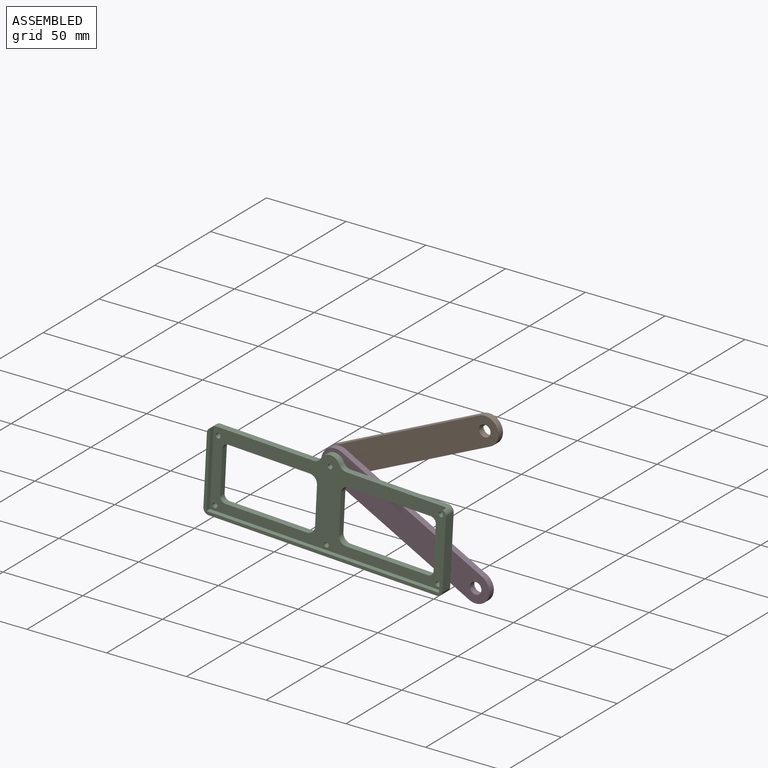
[diagram: assembled view]
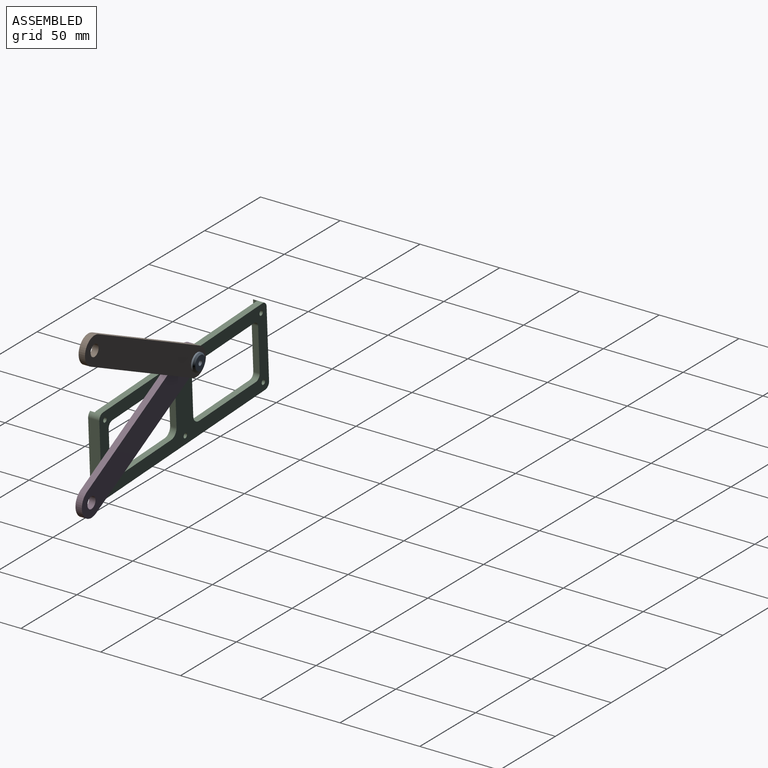
[diagram: assembled view, second angle]
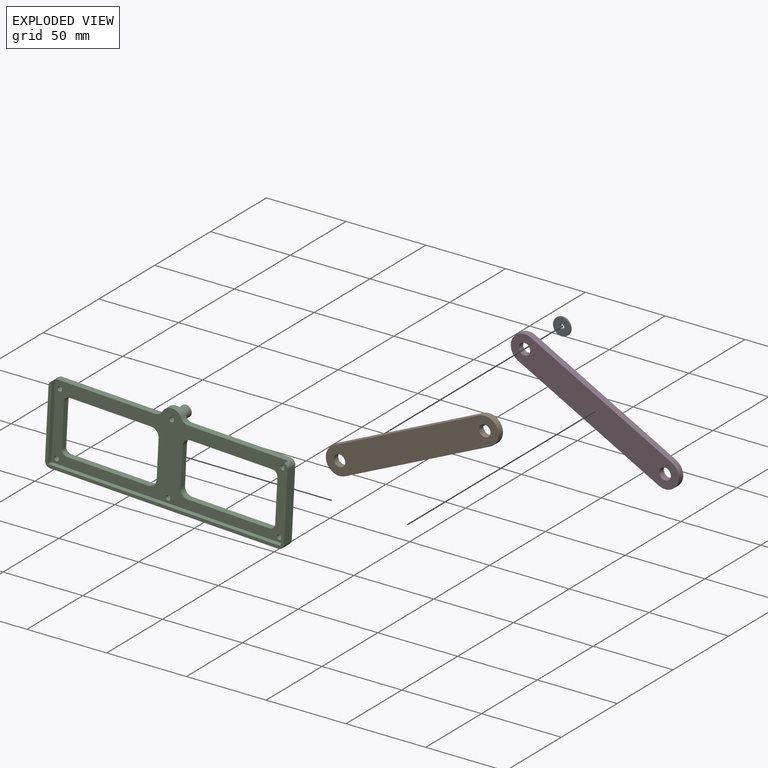
[diagram: exploded view]
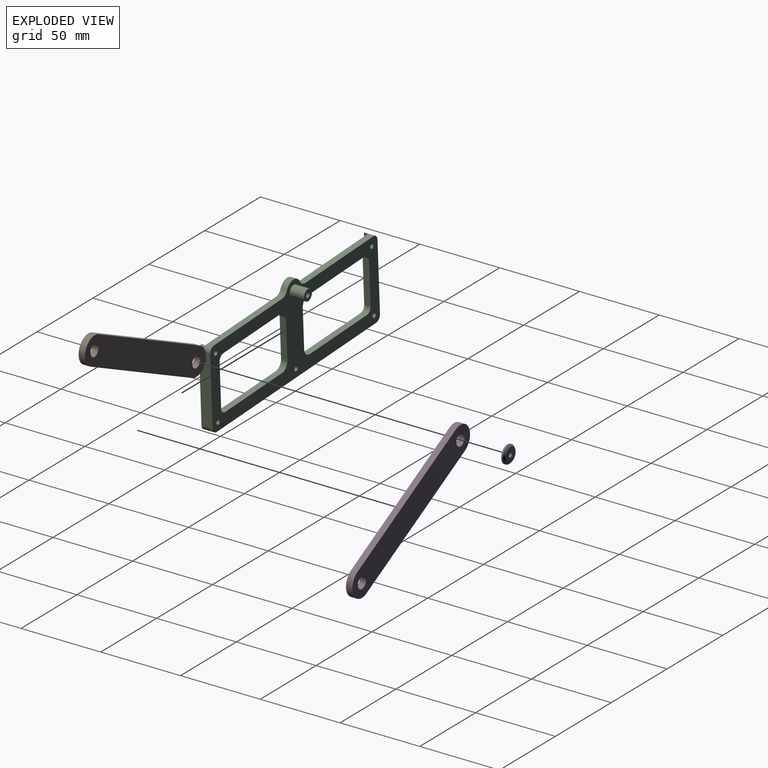
[diagram: exploded view, second angle]
ASSEMBLY  parts=4 mates=3
PART A: 5 faces, bbox 11x2x11 mm
  f0: cylinder r=1.5mm len=3mm, axis (0,-1,0), area 18.8mm2, adj f2,f3
  f1: cylinder r=5.5mm len=11mm, axis (0,-1,0), area 34.6mm2, adj f3,f4
  f2: plane 9x9mm, normal (0,1,0), area 56.5mm2, adj f0,f4
  f3: plane 11x11mm, normal (0,-1,0), area 88mm2, adj f0,f1
  f4: cone r=4.5mm half-angle=45deg, axis (0,-1,0), area 44.4mm2, adj f1,f2
PART B: 8 faces, bbox 117.2x4x17.2 mm
  f0: plane 100x4mm, normal (0,0,-1), area 400mm2, adj f1,f4,f6,f7
  f1: cylinder r=8.6mm len=17.2mm, axis (0,-1,0), area 108.1mm2, adj f0,f2,f6,f7
  f2: plane 100x4mm, normal (0,0,1), area 400mm2, adj f1,f4,f6,f7
  f3: cylinder r=3.6mm len=7.2mm, axis (0,-1,0), area 90.5mm2, adj f6,f7
  f4: cylinder r=8.6mm len=17.2mm, axis (0,-1,0), area 108.1mm2, adj f0,f2,f6,f7
  f5: cylinder r=3.6mm len=7.2mm, axis (0,-1,0), area 90.5mm2, adj f6,f7
  f6: plane 117.2x17.2mm, normal (0,1,0), area 1870.9mm2, adj f0,f1,f2,f3,f4,f5
  f7: plane 117.2x17.2mm, normal (0,-1,0), area 1870.9mm2, adj f0,f1,f2,f3,f4,f5
PART C: 42 faces, bbox 150x16x56.5 mm
  f0: plane 146x54.5mm, normal (0,-1,0), area 3022.4mm2, adj f1,f2,f3,f4,f5,f6,f7,f8
  f1: plane 24x4mm, normal (1,0,0), area 96mm2, adj f0,f16,f20,f21
  f2: plane 51x4mm, normal (0,0,-1), area 204mm2, adj f0,f16,f20,f37
  f3: plane 27x4mm, normal (-1,0,0), area 108mm2, adj f0,f16,f37,f38
  f4: plane 51x4mm, normal (0,0,-1), area 204mm2, adj f0,f16,f19,f36
  f5: plane 24x4mm, normal (-1,0,0), area 96mm2, adj f0,f16,f19,f22
  f6: plane 51x4mm, normal (0,0,1), area 204mm2, adj f0,f16,f22,f39
  f7: cylinder r=6.5mm len=11.71mm, axis (0,1,0), area 58.3mm2, adj f0,f16,f17,f18
  f8: plane 61.14x4mm, normal (0,0,1), area 244.6mm2, adj f0,f16,f17,f32
  f9: plane 43x7mm, normal (-1,0,0), area 301mm2, adj f16,f26,f32,f33
  f10: plane 143x7mm, normal (0,0,-1), area 1001mm2, adj f16,f26,f33,f34
  f11: plane 43x7mm, normal (1,0,0), area 301mm2, adj f16,f26,f34,f35
  f12: plane 51x4mm, normal (0,0,1), area 204mm2, adj f0,f16,f21,f38
  f13: plane 27x4mm, normal (1,0,0), area 108mm2, adj f0,f16,f36,f39
  f14: plane 61.14x4mm, normal (0,0,1), area 244.6mm2, adj f0,f16,f18,f35
  f15: cylinder r=1.5mm len=13mm, axis (0,1,0), area 122.5mm2, adj f0,f41
  f16: plane 150x56.5mm, normal (0,1,0), area 3472.8mm2, adj f1,f2,f3,f4,f5,f6,f7,f8
  f17: cylinder r=5mm len=4.5mm, axis (0,1,0), area 22.4mm2, adj f0,f7,f8,f16
  f18: cylinder r=5mm len=4.5mm, axis (0,1,0), area 22.4mm2, adj f0,f7,f14,f16
  f19: cylinder r=5mm len=5mm, axis (0,-1,0), area 31.4mm2, adj f0,f4,f5,f16
  f20: cylinder r=5mm len=5mm, axis (0,1,0), area 31.4mm2, adj f0,f1,f2,f16
  f21: cylinder r=5mm len=5mm, axis (0,-1,0), area 31.4mm2, adj f0,f1,f12,f16
  f22: cylinder r=5mm len=5mm, axis (0,1,0), area 31.4mm2, adj f0,f5,f6,f16
  f23: plane 47.66x3mm, normal (1,0,0), area 143mm2, adj f0,f25,f26,f32
  f24: plane 47.66x3mm, normal (-1,0,0), area 143mm2, adj f0,f25,f26,f35
  f25: plane 146x3mm, normal (0,0,1), area 438mm2, adj f0,f23,f24,f26
  f26: plane 150x49.66mm, normal (0,-1,0), area 481.8mm2, adj f9,f10,f11,f23,f24,f25,f32,f33
  f27: cylinder r=1.5mm len=4mm, axis (0,-1,0), area 37.7mm2, adj f0,f16
  f28: cylinder r=1.5mm len=4mm, axis (0,-1,0), area 37.7mm2, adj f0,f16
  f29: cylinder r=1.5mm len=4mm, axis (0,-1,0), area 37.7mm2, adj f0,f16
  f30: cylinder r=1.5mm len=4mm, axis (0,-1,0), area 37.7mm2, adj f0,f16
  f31: cylinder r=1.5mm len=4mm, axis (0,-1,0), area 37.7mm2, adj f0,f16
  f32: cylinder r=3.5mm len=7mm, axis (0,1,0), area 33.8mm2, adj f0,f8,f9,f16,f23,f26
  f33: cylinder r=3.5mm len=7mm, axis (0,-1,0), area 38.5mm2, adj f9,f10,f16,f26
  f34: cylinder r=3.5mm len=7mm, axis (0,1,0), area 38.5mm2, adj f10,f11,f16,f26
  f35: cylinder r=3.5mm len=7mm, axis (0,-1,0), area 33.8mm2, adj f0,f11,f14,f16,f24,f26
  f36: cylinder r=3.5mm len=4mm, axis (0,1,0), area 22mm2, adj f0,f4,f13,f16
  f37: cylinder r=3.5mm len=4mm, axis (0,-1,0), area 22mm2, adj f0,f2,f3,f16
  f38: cylinder r=3.5mm len=4mm, axis (0,1,0), area 22mm2, adj f0,f3,f12,f16
  f39: cylinder r=3.5mm len=4mm, axis (0,-1,0), area 22mm2, adj f0,f6,f13,f16
  f40: cylinder r=3.5mm len=9mm, axis (0,-1,0), area 197.9mm2, adj f16,f41
  f41: plane 7x7mm, normal (0,1,0), area 31.4mm2, adj f15,f40
PART D: same geometry as B
PLACE A t=(-13.54,1.9,-13.05)mm
PLACE B rot(axis=(0,-1,0),24.4deg) t=(112.85,-2.6,14.21)mm fixed
PLACE C rot(axis=(0,1,0),2.9deg) t=(-14.82,1.9,-13.02)mm
PLACE D rot(axis=(0,1,0),28.1deg) t=(65.18,-6.6,-86.95)mm
MATE revolute D.f1 <-> C.f40  axis (0,-1,0) through (-13.54,6.4,11.95)mm
MATE revolute A.f0 <-> C.f40  axis (0,-1,0) through (-13.54,10.9,11.95)mm
MATE revolute B.f1 <-> D.f1  axis (0,-1,0) through (-13.54,6.4,11.95)mm
